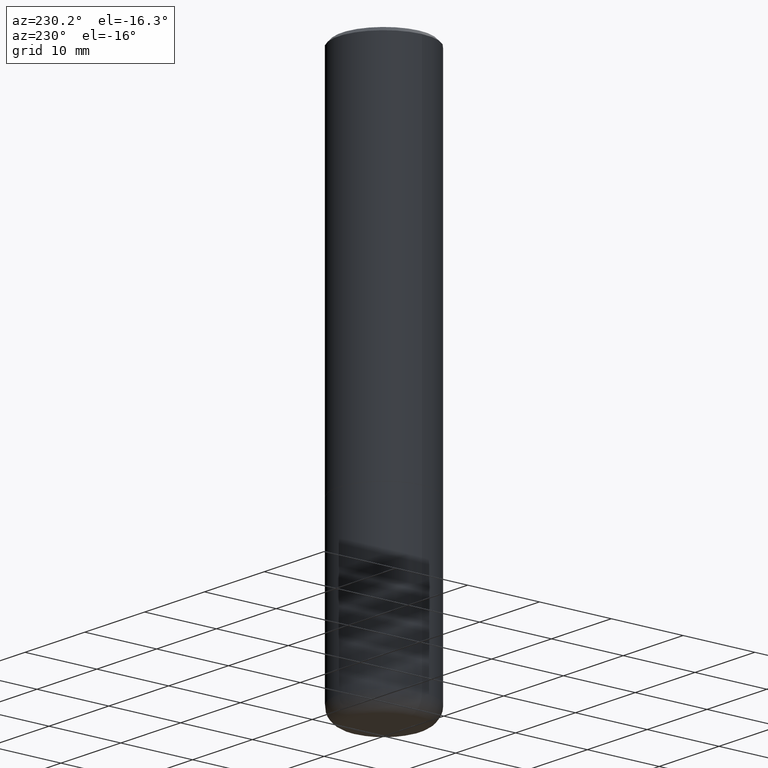
[diagram: clean part render]
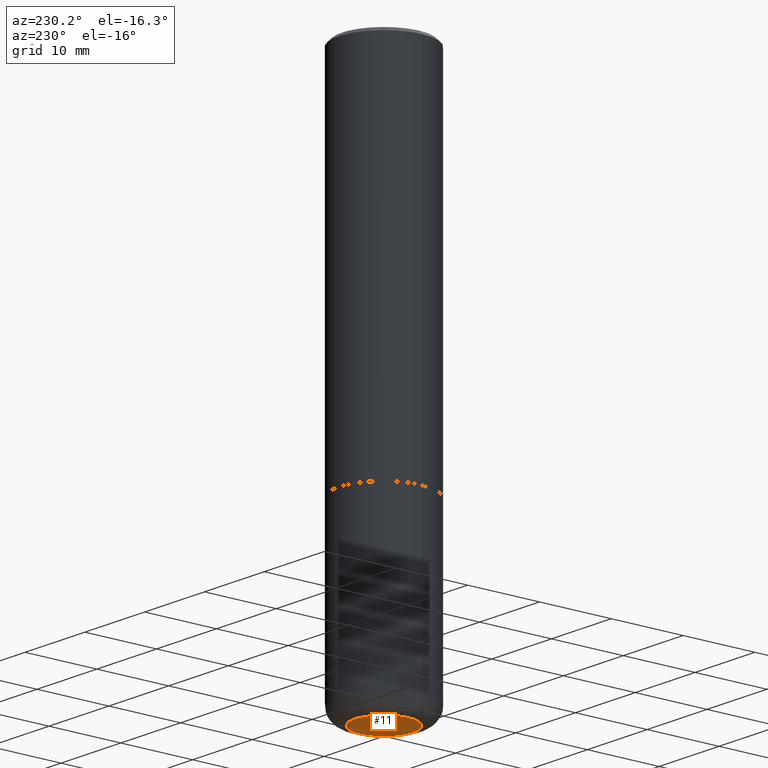
[diagram: same view with one face highlighted and labeled with its STEP entity id]
A machine part, auxiliary view. The second image highlights one B-rep face of the part: STEP entity #11.
In plain terms, the highlighted planar face has unit normal (0, -0, -1).
Its self-contained STEP definition (entity closure, byte-faithful):
#7 = AXIS2_PLACEMENT_3D ( 'NONE', #320, #169, #9 ) ;
#9 = DIRECTION ( 'NONE',  ( 1.000000000000000000, -6.982962677686271444E-15, 0.000000000000000000 ) ) ;
#11 = ADVANCED_FACE ( 'NONE', ( #219 ), #122, .T. ) ;
#33 = AXIS2_PLACEMENT_3D ( 'NONE', #309, #316, #313 ) ;
#80 = CIRCLE ( 'NONE', #208, 0.1600000000000000033 ) ;
#118 = CIRCLE ( 'NONE', #7, 0.1600000000000000033 ) ;
#122 = PLANE ( 'NONE',  #33 ) ;
#169 = DIRECTION ( 'NONE',  ( -2.445468806185136597E-29, 3.491481338843145583E-15, 1.000000000000000000 ) ) ;
#201 = CARTESIAN_POINT ( 'NONE',  ( 0.1600000000000000033, -1.159171804495923808E-14, -2.999999999999999556 ) ) ;
#203 = DIRECTION ( 'NONE',  ( 1.000000000000000000, -6.982962677686271444E-15, 0.000000000000000000 ) ) ;
#208 = AXIS2_PLACEMENT_3D ( 'NONE', #232, #222, #203 ) ;
#210 = VERTEX_POINT ( 'NONE', #285 ) ;
#219 = FACE_OUTER_BOUND ( 'NONE', #338, .T. ) ;
#222 = DIRECTION ( 'NONE',  ( -2.445468806185136597E-29, 3.491481338843145583E-15, 1.000000000000000000 ) ) ;
#225 = VERTEX_POINT ( 'NONE', #201 ) ;
#232 = CARTESIAN_POINT ( 'NONE',  ( 7.336406418555408669E-29, -1.047444401652943478E-14, -2.999999999999999556 ) ) ;
#274 = EDGE_CURVE ( 'NONE', #225, #210, #80, .T. ) ;
#285 = CARTESIAN_POINT ( 'NONE',  ( -0.1600000000000000033, -8.860714747973291991E-15, -2.999999999999999556 ) ) ;
#288 = EDGE_CURVE ( 'NONE', #210, #225, #118, .T. ) ;
#290 = ORIENTED_EDGE ( 'NONE', *, *, #274, .F. ) ;
#309 = CARTESIAN_POINT ( 'NONE',  ( 1.449005363638152099E-28, -2.300140402884597367E-16, -2.999999999999999556 ) ) ;
#313 = DIRECTION ( 'NONE',  ( -1.000000000000000000, 6.982962677686265922E-15, -4.876176775795935793E-29 ) ) ;
#316 = DIRECTION ( 'NONE',  ( 2.438088387897960049E-29, -3.491481338843145188E-15, -1.000000000000000000 ) ) ;
#320 = CARTESIAN_POINT ( 'NONE',  ( 7.336406418555408669E-29, -1.047444401652943478E-14, -2.999999999999999556 ) ) ;
#330 = ORIENTED_EDGE ( 'NONE', *, *, #288, .F. ) ;
#338 = EDGE_LOOP ( 'NONE', ( #290, #330 ) ) ;